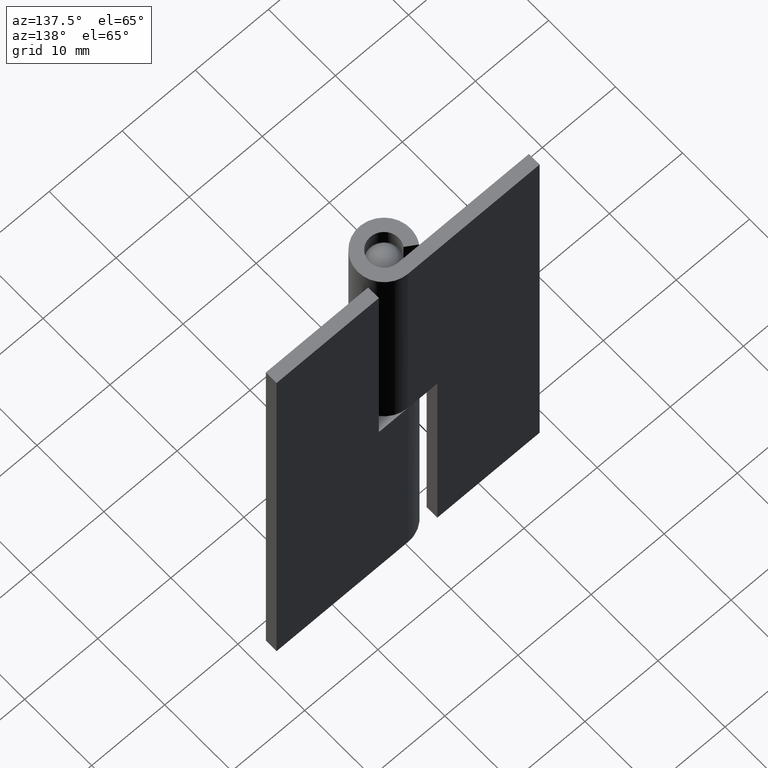
[diagram: clean part render]
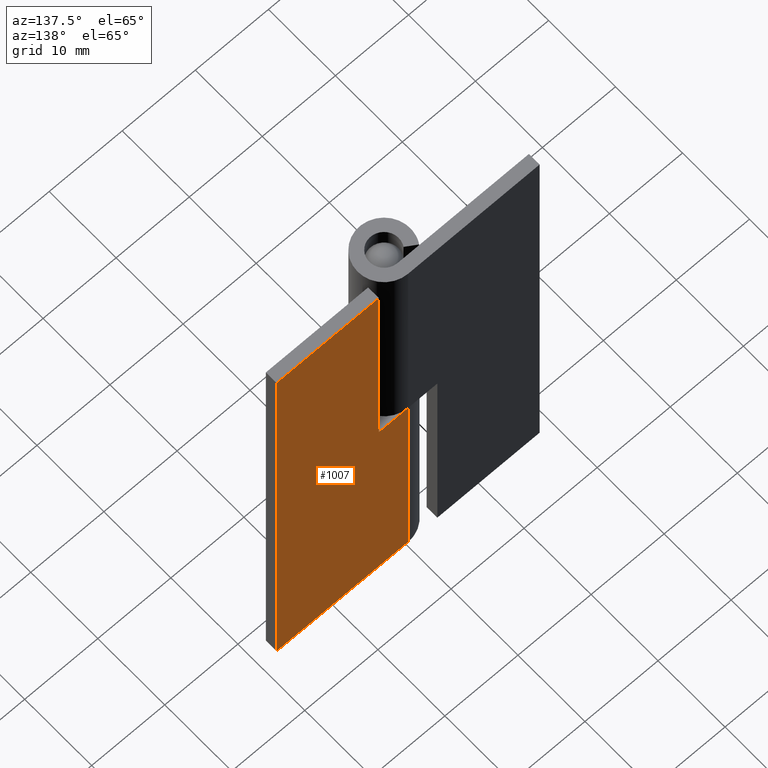
[diagram: same view with one face highlighted and labeled with its STEP entity id]
A machine part, auxiliary view. The second image highlights one B-rep face of the part: STEP entity #1007.
In plain terms, the highlighted face is a freeform B-spline surface patch.
Its self-contained STEP definition (entity closure, byte-faithful):
#714=CARTESIAN_POINT('',(4.0,3.599998000000000,64.000007999999895));
#715=VERTEX_POINT('',#714);
#723=CARTESIAN_POINT('',(4.0,3.599998000000000,32.000008000000001));
#724=VERTEX_POINT('',#723);
#725=CARTESIAN_POINT('',(4.0,3.599998000000000,64.000007999999895));
#726=CARTESIAN_POINT('',(4.0,3.599998000000000,32.000008000000001));
#727=QUASI_UNIFORM_CURVE('',1,(#725,#726),.UNSPECIFIED.,.F.,.U.);
#728=EDGE_CURVE('',#715,#724,#727,.T.);
#751=CARTESIAN_POINT('',(-0.003794732665984,3.599998000000000,32.000008000000001));
#752=VERTEX_POINT('',#751);
#753=CARTESIAN_POINT('',(4.0,3.599998000000000,32.000008000000001));
#754=CARTESIAN_POINT('',(-0.003794732665984,3.599998000000000,32.000008000000001));
#755=QUASI_UNIFORM_CURVE('',1,(#753,#754),.UNSPECIFIED.,.F.,.U.);
#756=EDGE_CURVE('',#724,#752,#755,.T.);
#850=CARTESIAN_POINT('',(-0.003794732665984,3.599998000000000,0.0));
#851=VERTEX_POINT('',#850);
#871=CARTESIAN_POINT('',(18.0,3.599998000000000,0.0));
#872=VERTEX_POINT('',#871);
#873=CARTESIAN_POINT('',(18.0,3.599998000000000,0.0));
#874=CARTESIAN_POINT('',(-0.003794732665984,3.599998000000000,0.0));
#875=QUASI_UNIFORM_CURVE('',1,(#873,#874),.UNSPECIFIED.,.F.,.U.);
#876=EDGE_CURVE('',#872,#851,#875,.T.);
#900=CARTESIAN_POINT('',(18.0,3.599998000000000,64.000008000000093));
#901=VERTEX_POINT('',#900);
#913=CARTESIAN_POINT('',(18.0,3.599998000000000,0.0));
#914=CARTESIAN_POINT('',(18.0,3.599998000000000,64.000008000000093));
#915=QUASI_UNIFORM_CURVE('',1,(#913,#914),.UNSPECIFIED.,.F.,.U.);
#916=EDGE_CURVE('',#872,#901,#915,.T.);
#933=CARTESIAN_POINT('',(18.0,3.599998000000000,64.000008000000093));
#934=CARTESIAN_POINT('',(4.0,3.599998000000000,64.000007999999895));
#935=QUASI_UNIFORM_CURVE('',1,(#933,#934),.UNSPECIFIED.,.F.,.U.);
#936=EDGE_CURVE('',#901,#715,#935,.T.);
#984=CARTESIAN_POINT('',(-0.003794732665984,3.599998000000000,0.0));
#985=CARTESIAN_POINT('',(-0.003794732665984,3.599998000000000,32.000008000000001));
#986=QUASI_UNIFORM_CURVE('',1,(#984,#985),.UNSPECIFIED.,.F.,.U.);
#987=EDGE_CURVE('',#851,#752,#986,.T.);
#994=CARTESIAN_POINT('',(-0.903084244667801,3.599998000000000,-3.196800275555570));
#995=CARTESIAN_POINT('',(-0.903084244667801,3.599998000000000,67.196809992169648));
#996=CARTESIAN_POINT('',(18.899289994901221,3.599998000000000,-3.196800275555570));
#997=CARTESIAN_POINT('',(18.899289994901221,3.599998000000000,67.196809992169648));
#998=B_SPLINE_SURFACE_WITH_KNOTS('',1,1,((#994,#996),(#995,#997)),.UNSPECIFIED.,.F.,.F.,.U.,(2,2),(2,2),(0.0,70.393610267725222),(0.0,19.802374239569030),.UNSPECIFIED.);
#999=ORIENTED_EDGE('',*,*,#756,.F.);
#1000=ORIENTED_EDGE('',*,*,#728,.F.);
#1001=ORIENTED_EDGE('',*,*,#936,.F.);
#1002=ORIENTED_EDGE('',*,*,#916,.F.);
#1003=ORIENTED_EDGE('',*,*,#876,.T.);
#1004=ORIENTED_EDGE('',*,*,#987,.T.);
#1005=EDGE_LOOP('',(#999,#1000,#1001,#1002,#1003,#1004));
#1006=FACE_OUTER_BOUND('',#1005,.T.);
#1007=ADVANCED_FACE('',(#1006),#998,.T.);